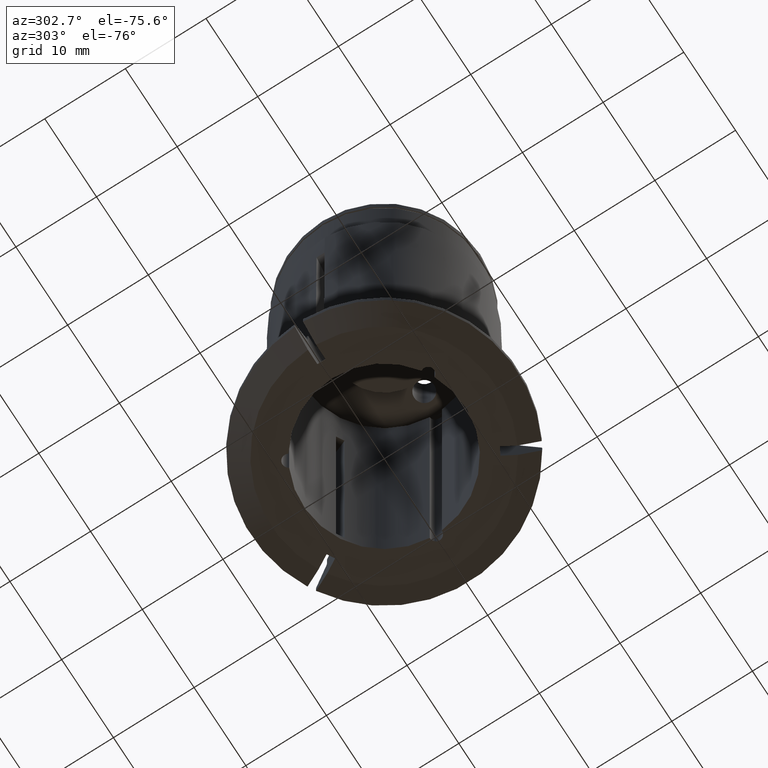
[diagram: clean part render]
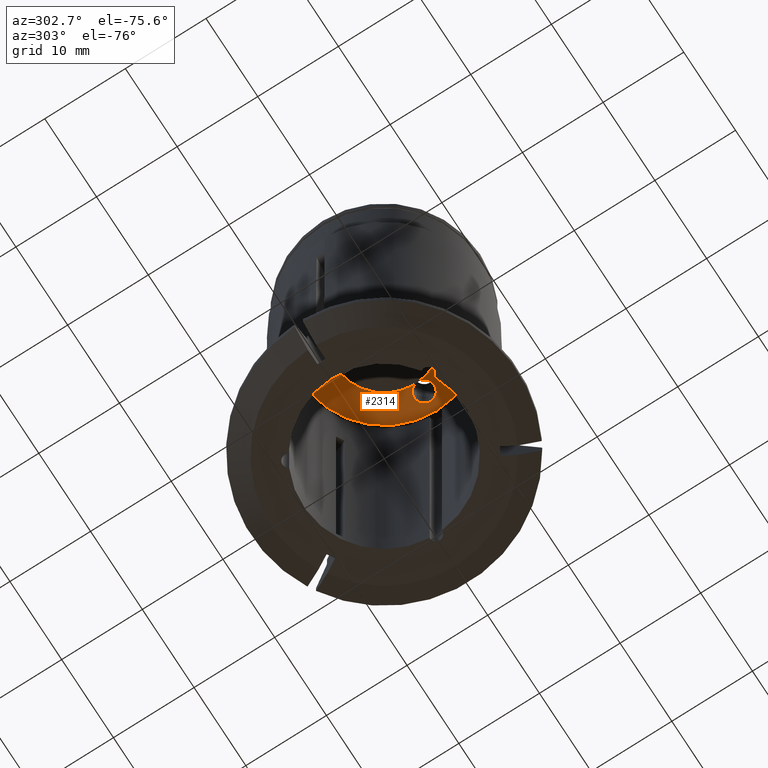
[diagram: same view with one face highlighted and labeled with its STEP entity id]
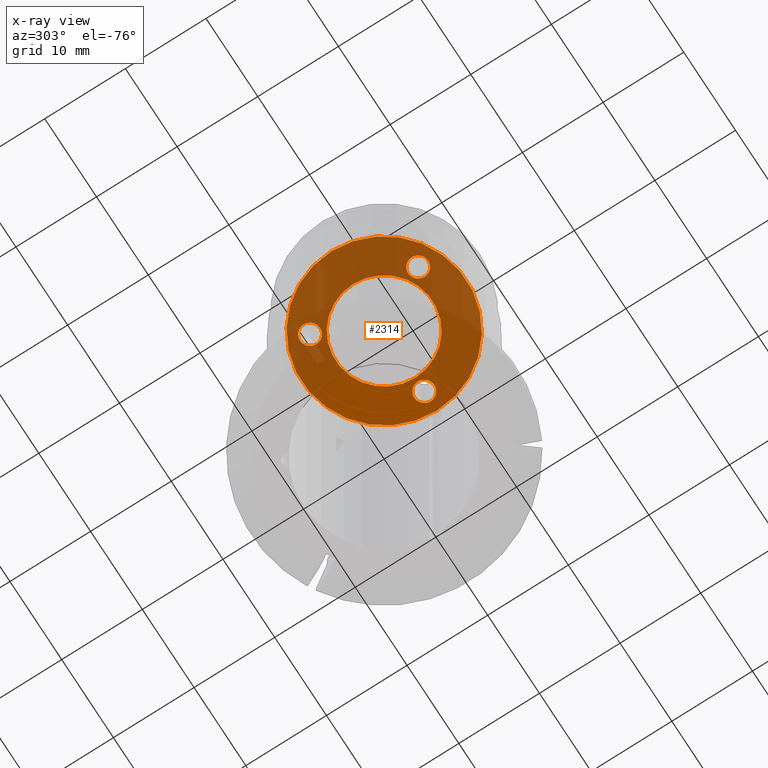
[diagram: x-ray of the same camera — body ghosted, the highlighted face saturated]
A machine part, auxiliary view. The second image highlights one B-rep face of the part: STEP entity #2314.
The next image is the same camera in x-ray: the body ghosted, the highlighted face saturated — about 74% of this face is hidden behind the body in this view.
In plain terms, the highlighted planar face has unit normal (0, 0, 1).
Its self-contained STEP definition (entity closure, byte-faithful):
#183=PLANE('',#2450);
#262=CIRCLE('',#2406,10.2);
#274=CIRCLE('',#2422,1.25);
#276=CIRCLE('',#2425,1.25);
#278=CIRCLE('',#2428,1.25);
#288=CIRCLE('',#2449,6.);
#431=ORIENTED_EDGE('',*,*,#904,.T.);
#432=ORIENTED_EDGE('',*,*,#872,.F.);
#433=ORIENTED_EDGE('',*,*,#894,.T.);
#434=ORIENTED_EDGE('',*,*,#892,.T.);
#435=ORIENTED_EDGE('',*,*,#890,.T.);
#872=EDGE_CURVE('',#1117,#1117,#262,.T.);
#890=EDGE_CURVE('',#1135,#1135,#274,.T.);
#892=EDGE_CURVE('',#1137,#1137,#276,.T.);
#894=EDGE_CURVE('',#1139,#1139,#278,.T.);
#904=EDGE_CURVE('',#1149,#1149,#288,.T.);
#1117=VERTEX_POINT('',#3180);
#1135=VERTEX_POINT('',#3250);
#1137=VERTEX_POINT('',#3255);
#1139=VERTEX_POINT('',#3260);
#1149=VERTEX_POINT('',#3291);
#1367=EDGE_LOOP('',(#431));
#1368=EDGE_LOOP('',(#432));
#1369=EDGE_LOOP('',(#433));
#1370=EDGE_LOOP('',(#434));
#1371=EDGE_LOOP('',(#435));
#1505=FACE_BOUND('',#1367,.T.);
#1506=FACE_BOUND('',#1368,.T.);
#1507=FACE_BOUND('',#1369,.T.);
#1508=FACE_BOUND('',#1370,.T.);
#1509=FACE_BOUND('',#1371,.T.);
#2314=ADVANCED_FACE('',(#1505,#1506,#1507,#1508,#1509),#183,.F.);
#2406=AXIS2_PLACEMENT_3D('',#3179,#2637,#2638);
#2422=AXIS2_PLACEMENT_3D('',#3249,#2669,#2670);
#2425=AXIS2_PLACEMENT_3D('',#3254,#2675,#2676);
#2428=AXIS2_PLACEMENT_3D('',#3259,#2681,#2682);
#2449=AXIS2_PLACEMENT_3D('',#3290,#2723,#2724);
#2450=AXIS2_PLACEMENT_3D('',#3292,#2725,#2726);
#2637=DIRECTION('',(0.,0.,1.));
#2638=DIRECTION('',(1.,0.,0.));
#2669=DIRECTION('',(0.,0.,1.));
#2670=DIRECTION('',(1.,0.,0.));
#2675=DIRECTION('',(0.,0.,1.));
#2676=DIRECTION('',(1.,0.,0.));
#2681=DIRECTION('',(0.,0.,1.));
#2682=DIRECTION('',(1.,0.,0.));
#2723=DIRECTION('',(0.,0.,1.));
#2724=DIRECTION('',(1.,0.,0.));
#2725=DIRECTION('',(0.,0.,1.));
#2726=DIRECTION('',(1.,0.,0.));
#3179=CARTESIAN_POINT('',(0.,0.,52.6));
#3180=CARTESIAN_POINT('',(10.2,0.,52.6));
#3249=CARTESIAN_POINT('',(-3.875,-6.71169687932939,52.6));
#3250=CARTESIAN_POINT('',(-2.625,-6.71169687932939,52.6));
#3254=CARTESIAN_POINT('',(-3.875,6.7116968793294,52.6));
#3255=CARTESIAN_POINT('',(-2.625,6.7116968793294,52.6));
#3259=CARTESIAN_POINT('',(7.75,0.,52.6));
#3260=CARTESIAN_POINT('',(9.,0.,52.6));
#3290=CARTESIAN_POINT('',(0.,0.,52.6));
#3291=CARTESIAN_POINT('',(6.,0.,52.6));
#3292=CARTESIAN_POINT('',(10.2,0.,52.6));